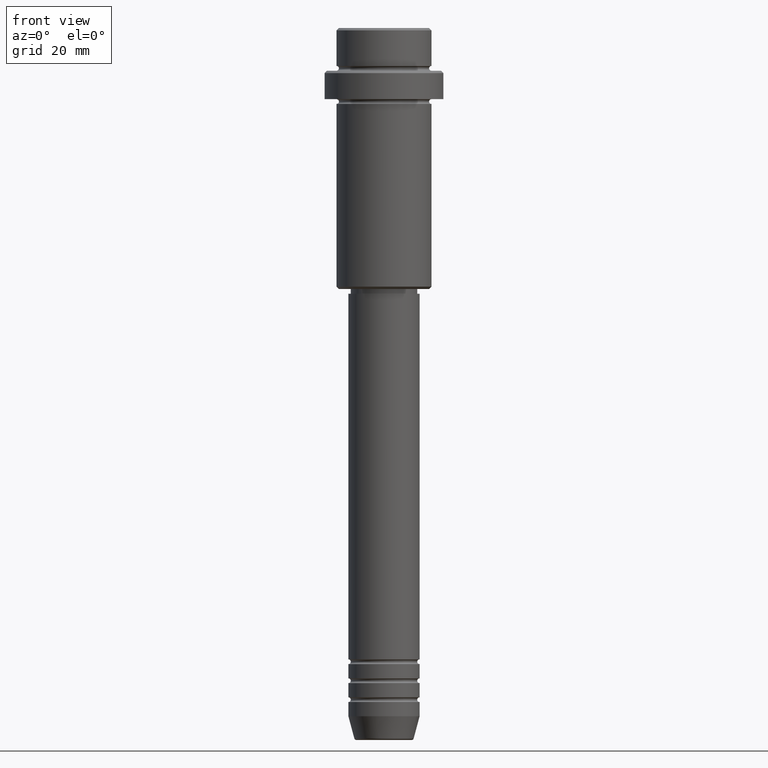
[diagram: clean part render]
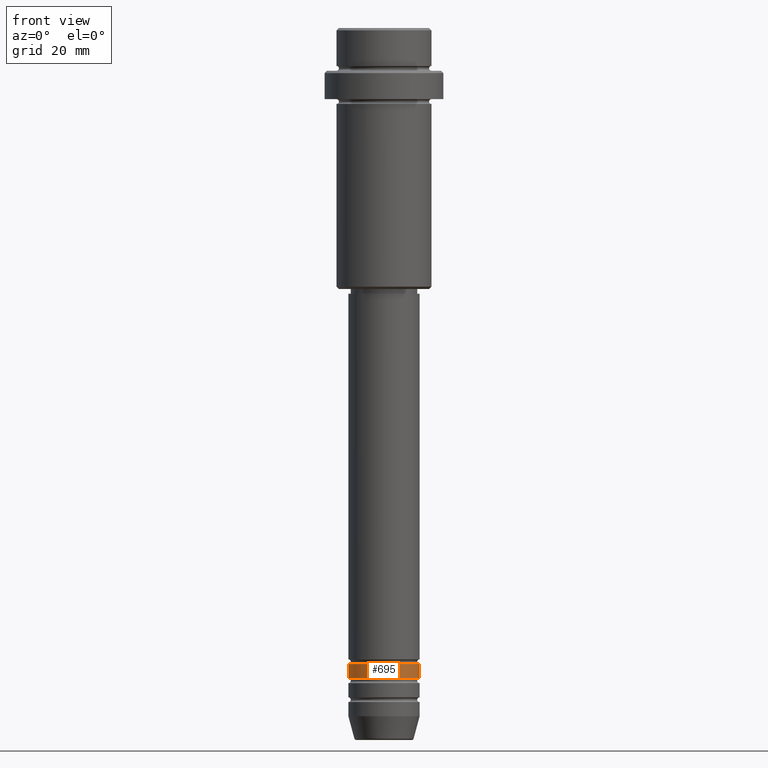
[diagram: same view with one face highlighted and labeled with its STEP entity id]
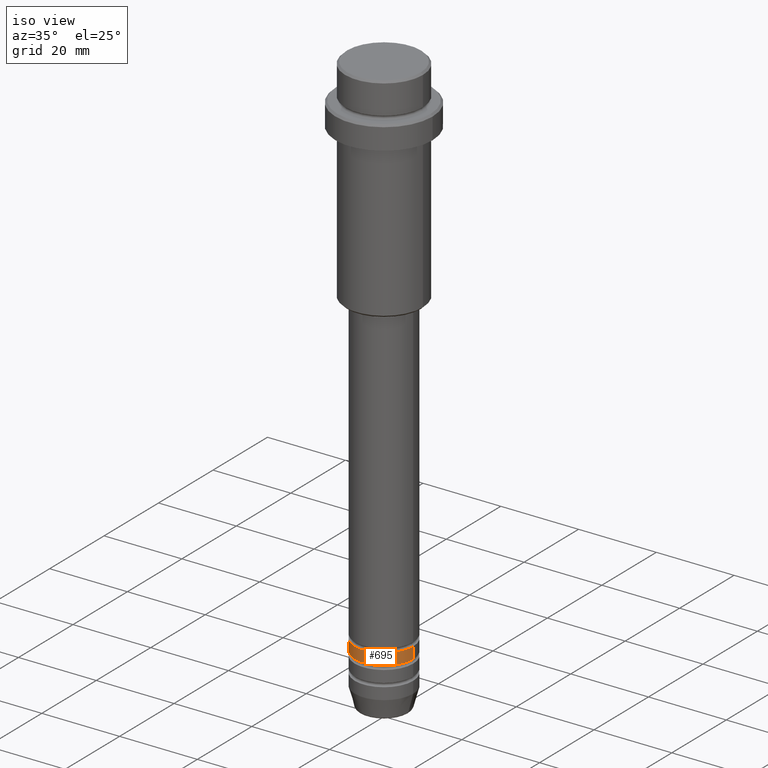
[diagram: same view with one face highlighted and labeled with its STEP entity id]
A machine part, front view. The second image highlights one B-rep face of the part: STEP entity #695.
A second angle (iso view) of the same face is appended — the face is thin or edge-on in the first view.
In plain terms, the highlighted cylindrical surface (edge-blend (fillet) strip) has radius 7.5 mm, axis along (-0, -0, 1).
Its self-contained STEP definition (entity closure, byte-faithful):
#4 = FACE_OUTER_BOUND ( 'NONE', #19, .T. ) ;
#19 = EDGE_LOOP ( 'NONE', ( #1299, #432, #244, #250 ) ) ;
#58 = DIRECTION ( 'NONE',  ( 1.000000000000000000, 0.000000000000000000, 0.000000000000000000 ) ) ;
#60 = AXIS2_PLACEMENT_3D ( 'NONE', #712, #365, #610 ) ;
#69 = VERTEX_POINT ( 'NONE', #603 ) ;
#100 = LINE ( 'NONE', #1288, #949 ) ;
#129 = CIRCLE ( 'NONE', #1273, 7.500000000000000000 ) ;
#244 = ORIENTED_EDGE ( 'NONE', *, *, #1035, .T. ) ;
#249 = CARTESIAN_POINT ( 'NONE',  ( -7.500000000000000000, 9.184850993605147944E-16, -136.9999999999998579 ) ) ;
#250 = ORIENTED_EDGE ( 'NONE', *, *, #959, .F. ) ;
#278 = CARTESIAN_POINT ( 'NONE',  ( 0.000000000000000000, 0.000000000000000000, -136.9999999999998579 ) ) ;
#365 = DIRECTION ( 'NONE',  ( -0.000000000000000000, -0.000000000000000000, 1.000000000000000000 ) ) ;
#366 = VERTEX_POINT ( 'NONE', #249 ) ;
#406 = CARTESIAN_POINT ( 'NONE',  ( 7.500000000000000000, 0.000000000000000000, 0.000000000000000000 ) ) ;
#407 = CARTESIAN_POINT ( 'NONE',  ( 0.000000000000000000, 0.000000000000000000, 0.000000000000000000 ) ) ;
#414 = AXIS2_PLACEMENT_3D ( 'NONE', #407, #852, #567 ) ;
#432 = ORIENTED_EDGE ( 'NONE', *, *, #948, .T. ) ;
#494 = DIRECTION ( 'NONE',  ( -0.000000000000000000, -0.000000000000000000, 1.000000000000000000 ) ) ;
#532 = DIRECTION ( 'NONE',  ( -0.000000000000000000, -0.000000000000000000, 1.000000000000000000 ) ) ;
#567 = DIRECTION ( 'NONE',  ( 1.000000000000000000, 0.000000000000000000, 0.000000000000000000 ) ) ;
#603 = CARTESIAN_POINT ( 'NONE',  ( -7.500000000000000000, 9.184850993605147944E-16, -133.9999999999998579 ) ) ;
#610 = DIRECTION ( 'NONE',  ( 1.000000000000000000, 0.000000000000000000, 0.000000000000000000 ) ) ;
#617 = EDGE_CURVE ( 'NONE', #366, #69, #100, .T. ) ;
#685 = CARTESIAN_POINT ( 'NONE',  ( 7.500000000000000000, 0.000000000000000000, -133.9999999999998579 ) ) ;
#695 = ADVANCED_FACE ( 'NONE', ( #4 ), #1397, .T. ) ;
#712 = CARTESIAN_POINT ( 'NONE',  ( 0.000000000000000000, 0.000000000000000000, -133.9999999999998579 ) ) ;
#754 = VERTEX_POINT ( 'NONE', #685 ) ;
#788 = VECTOR ( 'NONE', #532, 1000.000000000000000 ) ;
#842 = VERTEX_POINT ( 'NONE', #1150 ) ;
#852 = DIRECTION ( 'NONE',  ( -0.000000000000000000, -0.000000000000000000, 1.000000000000000000 ) ) ;
#885 = CIRCLE ( 'NONE', #60, 7.500000000000000000 ) ;
#948 = EDGE_CURVE ( 'NONE', #366, #842, #129, .T. ) ;
#949 = VECTOR ( 'NONE', #1057, 1000.000000000000000 ) ;
#959 = EDGE_CURVE ( 'NONE', #69, #754, #885, .T. ) ;
#1035 = EDGE_CURVE ( 'NONE', #842, #754, #1281, .T. ) ;
#1057 = DIRECTION ( 'NONE',  ( -0.000000000000000000, -0.000000000000000000, 1.000000000000000000 ) ) ;
#1150 = CARTESIAN_POINT ( 'NONE',  ( 7.500000000000000000, 0.000000000000000000, -136.9999999999998579 ) ) ;
#1273 = AXIS2_PLACEMENT_3D ( 'NONE', #278, #494, #58 ) ;
#1281 = LINE ( 'NONE', #406, #788 ) ;
#1288 = CARTESIAN_POINT ( 'NONE',  ( -7.500000000000000000, 9.184850993605147944E-16, 0.000000000000000000 ) ) ;
#1299 = ORIENTED_EDGE ( 'NONE', *, *, #617, .F. ) ;
#1397 = CYLINDRICAL_SURFACE ( 'NONE', #414, 7.500000000000000000 ) ;